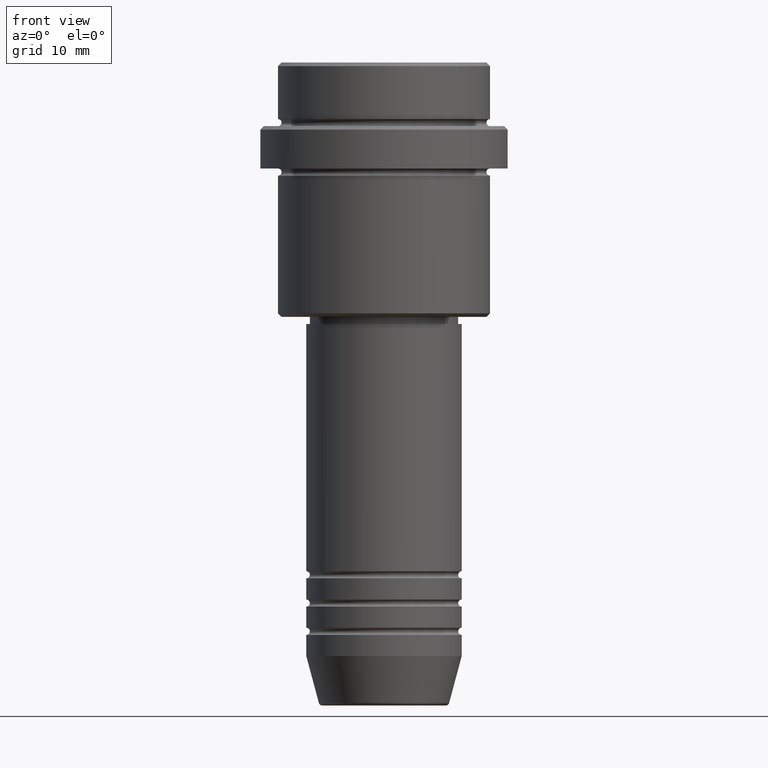
[diagram: clean part render]
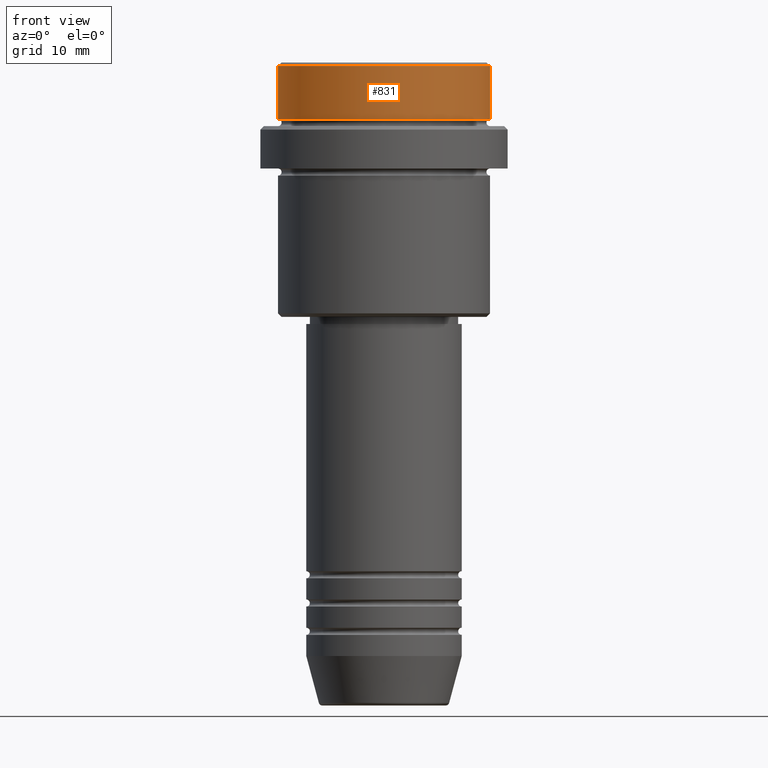
[diagram: same view with one face highlighted and labeled with its STEP entity id]
A machine part, front view. The second image highlights one B-rep face of the part: STEP entity #831.
In plain terms, the highlighted cylindrical surface (partial cylindrical patch) has radius 15 mm, axis along (-0, -0, 1).
Its self-contained STEP definition (entity closure, byte-faithful):
#49 = DIRECTION ( 'NONE',  ( 1.000000000000000000, 0.000000000000000000, 0.000000000000000000 ) ) ;
#50 = CIRCLE ( 'NONE', #720, 15.00000000000000000 ) ;
#69 = EDGE_LOOP ( 'NONE', ( #682, #230, #447, #204 ) ) ;
#89 = DIRECTION ( 'NONE',  ( 1.000000000000000000, 0.000000000000000000, 0.000000000000000000 ) ) ;
#100 = EDGE_CURVE ( 'NONE', #729, #683, #292, .T. ) ;
#101 = DIRECTION ( 'NONE',  ( -0.000000000000000000, -0.000000000000000000, 1.000000000000000000 ) ) ;
#111 = CARTESIAN_POINT ( 'NONE',  ( -15.00000000000000000, 1.836970198721029589E-15, -0.4999999999999970024 ) ) ;
#204 = ORIENTED_EDGE ( 'NONE', *, *, #606, .T. ) ;
#230 = ORIENTED_EDGE ( 'NONE', *, *, #1289, .T. ) ;
#234 = EDGE_CURVE ( 'NONE', #1223, #1196, #1191, .T. ) ;
#292 = LINE ( 'NONE', #1160, #734 ) ;
#447 = ORIENTED_EDGE ( 'NONE', *, *, #100, .T. ) ;
#515 = CIRCLE ( 'NONE', #1325, 15.00000000000000000 ) ;
#597 = DIRECTION ( 'NONE',  ( 0.000000000000000000, 0.000000000000000000, -1.000000000000000000 ) ) ;
#606 = EDGE_CURVE ( 'NONE', #683, #1196, #515, .T. ) ;
#665 = CARTESIAN_POINT ( 'NONE',  ( -15.00000000000000000, 1.836970198721029589E-15, 0.000000000000000000 ) ) ;
#682 = ORIENTED_EDGE ( 'NONE', *, *, #234, .F. ) ;
#683 = VERTEX_POINT ( 'NONE', #1256 ) ;
#720 = AXIS2_PLACEMENT_3D ( 'NONE', #974, #101, #89 ) ;
#727 = CARTESIAN_POINT ( 'NONE',  ( 15.00000000000000000, 0.000000000000000000, -7.999999999999998224 ) ) ;
#729 = VERTEX_POINT ( 'NONE', #727 ) ;
#734 = VECTOR ( 'NONE', #1175, 1000.000000000000000 ) ;
#754 = DIRECTION ( 'NONE',  ( 1.000000000000000000, 0.000000000000000000, 0.000000000000000000 ) ) ;
#831 = ADVANCED_FACE ( 'NONE', ( #1405 ), #872, .T. ) ;
#872 = CYLINDRICAL_SURFACE ( 'NONE', #1165, 15.00000000000000000 ) ;
#897 = DIRECTION ( 'NONE',  ( -0.000000000000000000, -0.000000000000000000, 1.000000000000000000 ) ) ;
#974 = CARTESIAN_POINT ( 'NONE',  ( 0.000000000000000000, 0.000000000000000000, -7.999999999999998224 ) ) ;
#985 = CARTESIAN_POINT ( 'NONE',  ( -15.00000000000000000, 1.836970198721029589E-15, -7.999999999999998224 ) ) ;
#1016 = DIRECTION ( 'NONE',  ( -0.000000000000000000, -0.000000000000000000, 1.000000000000000000 ) ) ;
#1122 = VECTOR ( 'NONE', #1016, 1000.000000000000000 ) ;
#1160 = CARTESIAN_POINT ( 'NONE',  ( 15.00000000000000000, 0.000000000000000000, 0.000000000000000000 ) ) ;
#1165 = AXIS2_PLACEMENT_3D ( 'NONE', #1291, #897, #754 ) ;
#1175 = DIRECTION ( 'NONE',  ( -0.000000000000000000, -0.000000000000000000, 1.000000000000000000 ) ) ;
#1191 = LINE ( 'NONE', #665, #1122 ) ;
#1196 = VERTEX_POINT ( 'NONE', #111 ) ;
#1223 = VERTEX_POINT ( 'NONE', #985 ) ;
#1249 = CARTESIAN_POINT ( 'NONE',  ( 0.000000000000000000, 0.000000000000000000, -0.4999999999999970024 ) ) ;
#1256 = CARTESIAN_POINT ( 'NONE',  ( 15.00000000000000000, 0.000000000000000000, -0.4999999999999970024 ) ) ;
#1289 = EDGE_CURVE ( 'NONE', #1223, #729, #50, .T. ) ;
#1291 = CARTESIAN_POINT ( 'NONE',  ( 0.000000000000000000, 0.000000000000000000, 0.000000000000000000 ) ) ;
#1325 = AXIS2_PLACEMENT_3D ( 'NONE', #1249, #597, #49 ) ;
#1405 = FACE_OUTER_BOUND ( 'NONE', #69, .T. ) ;